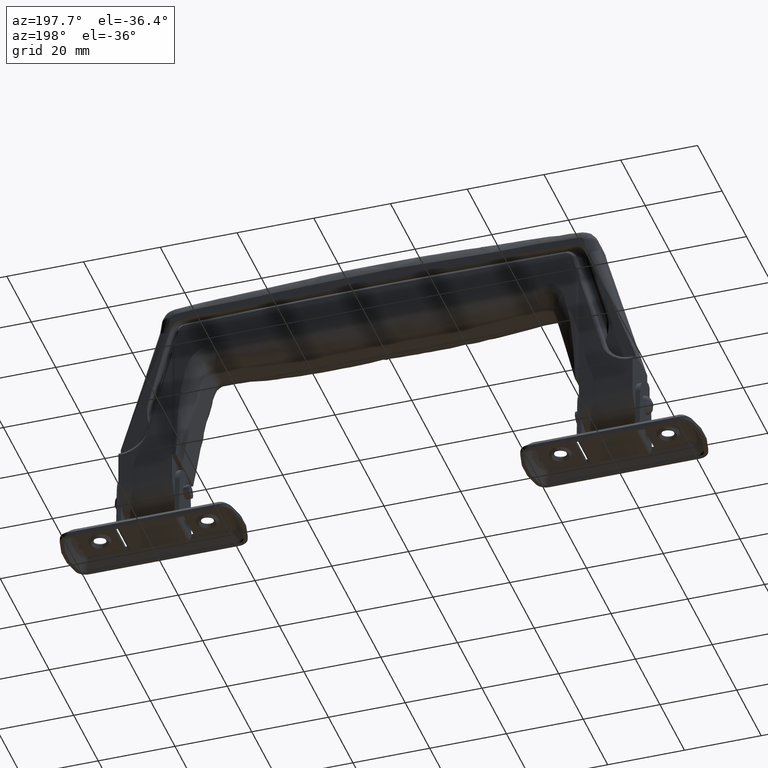
[diagram: clean part render]
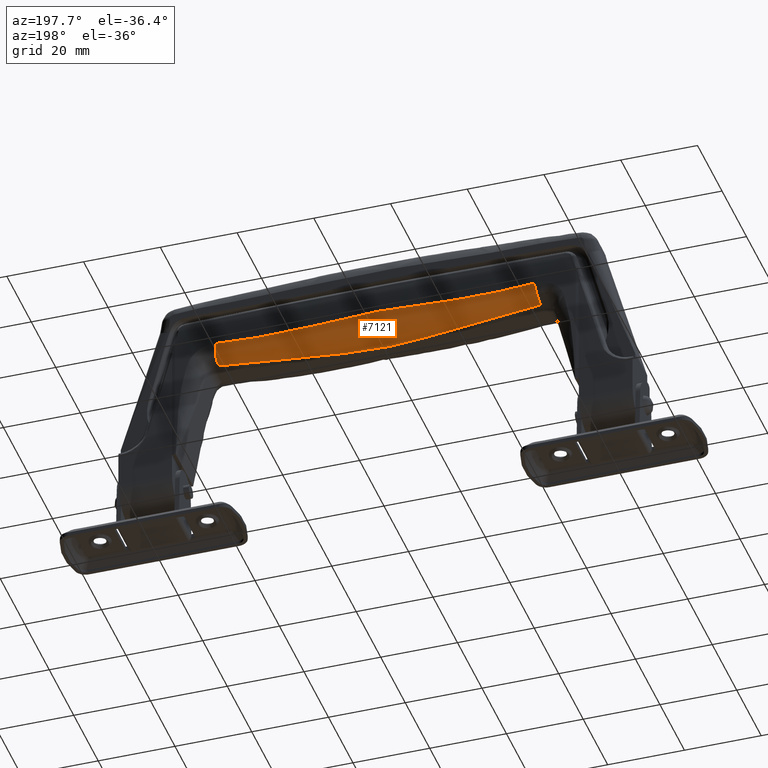
[diagram: same view with one face highlighted and labeled with its STEP entity id]
A machine part, auxiliary view. The second image highlights one B-rep face of the part: STEP entity #7121.
In plain terms, the highlighted face is a freeform B-spline surface patch.
Its self-contained STEP definition (entity closure, byte-faithful):
#6883=CARTESIAN_POINT('',(41.922986112252246,3.422827631886840,47.519837637553898));
#6884=VERTEX_POINT('',#6883);
#6885=CARTESIAN_POINT('',(41.554678747629751,7.421292411651240,51.491039493124703));
#6886=VERTEX_POINT('',#6885);
#6887=CARTESIAN_POINT('',(41.922986112252246,3.422827631886840,47.519837637553898));
#6888=CARTESIAN_POINT('',(42.031847503421808,7.408068273256460,47.532971609171547));
#6889=CARTESIAN_POINT('',(41.554678747629751,7.421292411651240,51.491039493124703));
#6897=(BOUNDED_CURVE()B_SPLINE_CURVE(2,(#6887,#6888,#6889),.UNSPECIFIED.,.F.,.U.)CURVE()GEOMETRIC_REPRESENTATION_ITEM()QUASI_UNIFORM_CURVE()RATIONAL_B_SPLINE_CURVE((1.0,0.708278998175985,1.0))REPRESENTATION_ITEM(''));
#6898=EDGE_CURVE('',#6884,#6886,#6897,.T.);
#6945=CARTESIAN_POINT('',(-42.341021367847198,3.382165207195170,47.570271433181027));
#6946=CARTESIAN_POINT('',(-42.341422192056399,3.396736982086226,47.570320278502408));
#6947=CARTESIAN_POINT('',(-42.451437948158848,7.396307855153182,47.583727040969350));
#6948=CARTESIAN_POINT('',(-41.968244915105764,7.409831556714036,51.555536585545333));
#6949=CARTESIAN_POINT('',(-41.966483565856400,7.409880853702948,51.570014740819587));
#6950=CARTESIAN_POINT('',(-42.201250441347106,3.385994148018000,47.553408791311000));
#6951=CARTESIAN_POINT('',(-42.201650353916868,3.400566108610671,47.553457364307633));
#6952=CARTESIAN_POINT('',(-42.311417108814027,7.400232405021609,47.566789528930812));
#6953=CARTESIAN_POINT('',(-41.829647214198523,7.413672413728989,51.538859920364395));
#6954=CARTESIAN_POINT('',(-41.827891072133049,7.413721405093780,51.553338865560811));
#6955=CARTESIAN_POINT('',(-42.061479537437855,3.389823088221974,47.536546152166494));
#6956=CARTESIAN_POINT('',(-42.061878527089895,3.404395234825210,47.536594451477740));
#6957=CARTESIAN_POINT('',(-42.171393179591391,7.404157041494142,47.549851643127603));
#6958=CARTESIAN_POINT('',(-41.691049524514639,7.417513270432917,51.522183256533886));
#6959=CARTESIAN_POINT('',(-41.689298600821694,7.417561955863540,51.536662992998664));
#6960=CARTESIAN_POINT('',(-34.933193237131427,3.585098222296951,46.676555150899233));
#6961=CARTESIAN_POINT('',(-34.933530203105775,3.599680265101628,46.676587688043242));
#6962=CARTESIAN_POINT('',(-35.026073057277962,7.604428410221186,46.685523546272698));
#6963=CARTESIAN_POINT('',(-34.622582077918693,7.613396554206780,50.671675173227385));
#6964=CARTESIAN_POINT('',(-34.621112127294211,7.613429225888489,50.686197049484775));
#6965=CARTESIAN_POINT('',(-27.934939491513454,3.226033855927586,46.046326713194645));
#6966=CARTESIAN_POINT('',(-27.935248858156235,3.242445935964606,46.046350303081290));
#6967=CARTESIAN_POINT('',(-28.020247516026195,7.751674091233070,46.052831637617281));
#6968=CARTESIAN_POINT('',(-27.650318979483252,7.758171162642511,50.548731860265860));
#6969=CARTESIAN_POINT('',(-27.648971863443325,7.758194822101681,50.565103939479762));
#6970=CARTESIAN_POINT('',(-13.956189946906402,2.409726398458680,45.208273814840375));
#6971=CARTESIAN_POINT('',(-13.956382751747233,2.429799474252184,45.208280334638069));
#6972=CARTESIAN_POINT('',(-14.009385455938887,7.947956040831489,45.210072649120399));
#6973=CARTESIAN_POINT('',(-13.779271936141361,7.949746699893864,50.724558147462567));
#6974=CARTESIAN_POINT('',(-13.778434430392080,7.949753217056618,50.744628299417712));
#6975=CARTESIAN_POINT('',(-6.974296990739857,1.449473059692510,44.999995188620048));
#6976=CARTESIAN_POINT('',(-6.974405740444124,1.473201031135671,44.999995188469555));
#6977=CARTESIAN_POINT('',(-7.004305529115574,7.997001132554747,44.999995147102091));
#6978=CARTESIAN_POINT('',(-6.874304308261578,7.997001090692278,51.523807791744574));
#6979=CARTESIAN_POINT('',(-6.873831229825758,7.997001090539937,51.547548146344553));
#6980=CARTESIAN_POINT('',(6.974779893647503,1.449470887226474,45.000004811546731));
#6981=CARTESIAN_POINT('',(6.974888650881639,1.473198858333757,45.000004811697167));
#6982=CARTESIAN_POINT('',(7.004790509825395,7.996998867406084,45.000004853066073));
#6983=CARTESIAN_POINT('',(6.874780287638738,7.996998909269946,51.523817235463369));
#6984=CARTESIAN_POINT('',(6.874307176446792,7.996998909422289,51.547557589109033));
#6985=CARTESIAN_POINT('',(13.956672891701086,2.409722032195557,45.208293081038185));
#6986=CARTESIAN_POINT('',(13.956865702894907,2.429795107652118,45.208299601367457));
#6987=CARTESIAN_POINT('',(14.009870152865812,7.947951510918466,45.210092061961241));
#6988=CARTESIAN_POINT('',(13.779749025872817,7.949742317688120,50.724577096135206));
#6989=CARTESIAN_POINT('',(13.778911492426154,7.949748835388540,50.744647246658062));
#6990=CARTESIAN_POINT('',(27.935421572494850,3.226025085037054,46.046365302815147));
#6991=CARTESIAN_POINT('',(27.935730944259998,3.242437164540648,46.046388893554450));
#6992=CARTESIAN_POINT('',(28.020731007324912,7.751665058201027,46.052870462175989));
#6993=CARTESIAN_POINT('',(27.650796283165288,7.758162363397230,50.548769939889340));
#6994=CARTESIAN_POINT('',(27.649449144558449,7.758186023708361,50.565142016808281));
#6995=CARTESIAN_POINT('',(34.933674577992726,3.585087230941878,46.676603425565567));
#6996=CARTESIAN_POINT('',(34.934011548457427,3.599669273183662,46.676635963636151));
#6997=CARTESIAN_POINT('',(35.026555632870640,7.604417135746062,46.685572076035768));
#6998=CARTESIAN_POINT('',(34.623059178322436,7.613385533754578,50.671722893134792));
#6999=CARTESIAN_POINT('',(34.621589207704446,7.613418206362765,50.686244766905872));
#7000=CARTESIAN_POINT('',(42.061959645278769,3.389809891986687,47.536604270978650));
#7001=CARTESIAN_POINT('',(42.062358639337361,3.404382037913785,47.536652571382582));
#7002=CARTESIAN_POINT('',(42.171874497161937,7.404143505888197,47.549910062460107));
#7003=CARTESIAN_POINT('',(41.691525403257074,7.417500038654339,51.522240710364393));
#7004=CARTESIAN_POINT('',(41.689774459671803,7.417548725194326,51.536720443864084));
#7005=CARTESIAN_POINT('',(42.201730525070239,3.385980908547967,47.553467103153572));
#7006=CARTESIAN_POINT('',(42.202130442041728,3.400552868462464,47.553515677245436));
#7007=CARTESIAN_POINT('',(42.311898400887742,7.400218825128857,47.566848141963085));
#7008=CARTESIAN_POINT('',(41.830123069042195,7.413659138589444,51.538917565063194));
#7009=CARTESIAN_POINT('',(41.828366907089553,7.413708131066998,51.553396507285896));
#7010=CARTESIAN_POINT('',(42.341501427452783,3.382151924490374,47.570329938054051));
#7011=CARTESIAN_POINT('',(42.341902256058702,3.396723698701222,47.570378784473071));
#7012=CARTESIAN_POINT('',(42.451919214701810,7.396294230975566,47.583785847692972));
#7013=CARTESIAN_POINT('',(41.968720746050813,7.409818238213519,51.555594421112481));
#7014=CARTESIAN_POINT('',(41.966959376919597,7.409867536318595,51.570072573404460));
#7022=(BOUNDED_SURFACE()B_SPLINE_SURFACE(2,3,((#6945,#6950,#6955,#6960,#6965,#6970,#6975,#6980,#6985,#6990,#6995,#7000,#7005,#7010),(#6946,#6951,#6956,#6961,#6966,#6971,#6976,#6981,#6986,#6991,#6996,#7001,#7006,#7011),(#6947,#6952,#6957,#6962,#6967,#6972,#6977,#6982,#6987,#6992,#6997,#7002,#7007,#7012),(#6948,#6953,#6958,#6963,#6968,#6973,#6978,#6983,#6988,#6993,#6998,#7003,#7008,#7013),(#6949,#6954,#6959,#6964,#6969,#6974,#6979,#6984,#6989,#6994,#6999,#7004,#7009,#7014)),.UNSPECIFIED.,.F.,.F.,.U.)B_SPLINE_SURFACE_WITH_KNOTS((3,1,1,3),(4,2,2,2,2,2,4),(0.0,0.053461423501160,10.362109981322060,10.415599432042670),(0.0,0.422512362649586,21.548130967268889,42.673749571888152,63.799368176507450,84.924986781126705,85.347499143938492),.UNSPECIFIED.)GEOMETRIC_REPRESENTATION_ITEM()RATIONAL_B_SPLINE_SURFACE(((1.003025531032494,1.003025612090620,1.003025693148745,1.003029827113231,1.003032876772617,1.003036927371016,1.003037932338807,1.003037932338807,1.003036927277736,1.003032876586725,1.003029826880325,1.003025692869571,1.003025611810539,1.003025530751506),(1.001512765516247,1.001512806045310,1.001512846574372,1.001514913556616,1.001516438386309,1.001518463685508,1.001518966169404,1.001518966169404,1.001518463638868,1.001516438293362,1.001514913440162,1.001512846434786,1.001512805905269,1.001512765375753),(0.708302416282588,0.708294601304302,0.708286786326016,0.707888222424705,0.707594198577511,0.707203672169763,0.707106781186586,0.707106781186586,0.707203681163086,0.707594216499801,0.707888244879698,0.708286813241739,0.708294628307493,0.708302443373247),(1.001513558585498,1.001513599135808,1.001513639686118,1.001515707751979,1.001517233381066,1.001519259742032,1.001519762489355,1.001519762489355,1.001519259695367,1.001517233288071,1.001515707635465,1.001513639546458,1.001513598995694,1.001513558444930),(1.003027117170996,1.003027198271616,1.003027279372237,1.003031415503959,1.003034466762133,1.003038519484063,1.003039524978710,1.003039524978710,1.003038519390734,1.003034466576142,1.003031415270930,1.003027279092916,1.003027197991388,1.003027116889860)))REPRESENTATION_ITEM('')SURFACE());
#7023=CARTESIAN_POINT('',(-41.922505971457340,3.428609498493105,47.519779709588200));
#7024=VERTEX_POINT('',#7023);
#7025=CARTESIAN_POINT('',(-41.554202825031552,7.421305601178259,51.490982227192802));
#7026=VERTEX_POINT('',#7025);
#7027=CARTESIAN_POINT('',(-41.922505971457340,3.428609498493105,47.519779709588192));
#7028=CARTESIAN_POINT('',(-42.030600276639646,7.408102999739661,47.538603834422368));
#7029=CARTESIAN_POINT('',(-41.554202825031552,7.421305601178259,51.490982227192802));
#7037=(BOUNDED_CURVE()B_SPLINE_CURVE(2,(#7027,#7028,#7029),.UNSPECIFIED.,.F.,.U.)B_SPLINE_CURVE_WITH_KNOTS((3,3),(0.0,0.998979220987266),.UNSPECIFIED.)CURVE()GEOMETRIC_REPRESENTATION_ITEM()RATIONAL_B_SPLINE_CURVE((0.999405042533425,0.708576754051278,1.0))REPRESENTATION_ITEM(''));
#7038=EDGE_CURVE('',#7024,#7026,#7037,.T.);
#7039=ORIENTED_EDGE('',*,*,#7038,.T.);
#7040=CARTESIAN_POINT('',(41.554678747629751,7.421292411651240,51.491039493124703));
#7041=CARTESIAN_POINT('',(41.089920193332183,7.434047676379141,51.437016296585547));
#7042=CARTESIAN_POINT('',(40.150705425610717,7.459824357384624,51.327842654658284));
#7043=CARTESIAN_POINT('',(38.724575480703130,7.497267260594473,51.186495987850194));
#7044=CARTESIAN_POINT('',(37.267484889212867,7.534219085854554,51.059223242089693));
#7045=CARTESIAN_POINT('',(35.779207858291798,7.570472299440874,50.947867913329610));
#7046=CARTESIAN_POINT('',(34.259805049064887,7.605966556472379,50.851906605791733));
#7047=CARTESIAN_POINT('',(32.709257243127993,7.640598364204037,50.771537867194908));
#7048=CARTESIAN_POINT('',(30.035925125816121,7.697515751552243,50.661610537507471));
#7049=CARTESIAN_POINT('',(26.034465751327190,7.774075246733962,50.584882149279530));
#7050=CARTESIAN_POINT('',(22.028317185546229,7.836796585451508,50.591701423773230));
#7051=CARTESIAN_POINT('',(19.075757033515160,7.876007922275928,50.647203058309550));
#7052=CARTESIAN_POINT('',(17.343630611019940,7.897090092844721,50.707089204321207));
#7053=CARTESIAN_POINT('',(15.462995699350429,7.917721367485576,50.791627427453257));
#7054=CARTESIAN_POINT('',(13.111740471957170,7.940450988366018,50.924132990940002));
#7055=CARTESIAN_POINT('',(10.403595031904951,7.961950374993065,51.087925536474060));
#7056=CARTESIAN_POINT('',(7.631268280273360,7.978335708493446,51.252660689280340));
#7057=CARTESIAN_POINT('',(4.187688460360040,7.992751175799176,51.429536429750669));
#7058=CARTESIAN_POINT('',(0.000237962633854,7.999964786387444,51.549177740246932));
#7059=CARTESIAN_POINT('',(-4.186956540146042,7.992752945070807,51.429540051855867));
#7060=CARTESIAN_POINT('',(-7.630536699815760,7.978339451561690,51.252662083331749));
#7061=CARTESIAN_POINT('',(-10.402714048760570,7.961956583533592,51.087976528869369));
#7062=CARTESIAN_POINT('',(-13.111111661781999,7.940456474974519,50.923980210182357));
#7063=CARTESIAN_POINT('',(-15.756269520244251,7.914886907462761,50.775443195281632));
#7064=CARTESIAN_POINT('',(-18.168381145413189,7.887717206963830,50.670825396634427));
#7065=CARTESIAN_POINT('',(-20.663796899796111,7.855285086545871,50.612700287341852));
#7066=CARTESIAN_POINT('',(-22.970312949882882,7.821667795776087,50.596689045459669));
#7067=CARTESIAN_POINT('',(-25.156739551622650,7.786538313443124,50.594558654166278));
#7068=CARTESIAN_POINT('',(-27.241091105412849,7.750080087857992,50.612610137205600));
#7069=CARTESIAN_POINT('',(-29.223361611132422,7.712720034700978,50.649171066557443));
#7070=CARTESIAN_POINT('',(-31.426853274230840,7.668347885775612,50.714429405313830));
#7071=CARTESIAN_POINT('',(-33.853981595895831,7.615746232524052,50.823052658214252));
#7072=CARTESIAN_POINT('',(-36.506305185607403,7.553399378838416,50.994690066818997));
#7073=CARTESIAN_POINT('',(-39.064090637881407,7.489133244080036,51.209285930644292));
#7074=CARTESIAN_POINT('',(-40.734106550709512,7.443644031361043,51.398208060437469));
#7075=CARTESIAN_POINT('',(-41.554202825031552,7.421305601178259,51.490982227192802));
#7076=B_SPLINE_CURVE_WITH_KNOTS('',3,(#7040,#7041,#7042,#7043,#7044,#7045,#7046,#7047,#7048,#7049,#7050,#7051,#7052,#7053,#7054,#7055,#7056,#7057,#7058,#7059,#7060,#7061,#7062,#7063,#7064,#7065,#7066,#7067,#7068,#7069,#7070,#7071,#7072,#7073,#7074,#7075),.UNSPECIFIED.,.F.,.U.,(4,1,1,1,1,1,1,1,1,1,1,1,1,1,1,1,1,1,1,1,1,1,1,1,1,1,1,1,1,1,1,1,1,4),(0.0,0.016871193265619,0.034094421108979,0.051672565732831,0.069608338239717,0.087904290752321,0.106562827597018,0.125586215621713,0.184366694436632,0.250831566810172,0.269994510449988,0.290818403783771,0.313306454519160,0.337853986691786,0.375707509412963,0.411104513368805,0.437959850313504,0.499999734732330,0.562039619097655,0.588885736684458,0.624291960165088,0.662140077161122,0.686693014699425,0.719791726797836,0.749167389296251,0.776667493108732,0.802940214768317,0.827987520521682,0.851811680030294,0.874415331417760,0.907462587422632,0.939400213280728,0.970241206127654,1.0),.UNSPECIFIED.);
#7077=EDGE_CURVE('',#6886,#7026,#7076,.T.);
#7078=ORIENTED_EDGE('',*,*,#7077,.F.);
#7079=ORIENTED_EDGE('',*,*,#6898,.F.);
#7080=CARTESIAN_POINT('',(-41.922505971457340,3.428609498493105,47.519779709588200));
#7081=CARTESIAN_POINT('',(-41.387784306123088,3.441291358130296,47.455991692177641));
#7082=CARTESIAN_POINT('',(-40.299595541658761,3.467098993171953,47.326179748351393));
#7083=CARTESIAN_POINT('',(-38.637588862275202,3.482014902473641,47.137911780569958));
#7084=CARTESIAN_POINT('',(-36.918296463248062,3.480696708186453,46.951027288092781));
#7085=CARTESIAN_POINT('',(-35.141573246284302,3.461217072185054,46.767088691032242));
#7086=CARTESIAN_POINT('',(-33.307416126983917,3.424038392043018,46.586764102441471));
#7087=CARTESIAN_POINT('',(-31.084605387603450,3.359759369470192,46.380237789170572));
#7088=CARTESIAN_POINT('',(-28.308025343527540,3.248790345975289,46.141663620229522));
#7089=CARTESIAN_POINT('',(-24.812178149337900,3.075586718342046,45.873762153604723));
#7090=CARTESIAN_POINT('',(-21.780859596236532,2.912362540175916,45.674386794015383));
#7091=CARTESIAN_POINT('',(-19.332981653752910,2.758822524876194,45.533064589820029));
#7092=CARTESIAN_POINT('',(-17.586125401627360,2.629754782592562,45.440469902456897));
#7093=CARTESIAN_POINT('',(-15.481877911449670,2.458363171236774,45.340078979362303));
#7094=CARTESIAN_POINT('',(-13.086686062053889,2.255247277380643,45.241479534866002));
#7095=CARTESIAN_POINT('',(-10.557213597751950,2.033159002645956,45.156316643068493));
#7096=CARTESIAN_POINT('',(-8.159444739793775,1.834879159015489,45.092634863047373));
#7097=CARTESIAN_POINT('',(-5.935980410513772,1.687093695060259,45.048127854646381));
#7098=CARTESIAN_POINT('',(-3.842102878631118,1.580143399003523,45.019135406623967));
#7099=CARTESIAN_POINT('',(-1.877790702728081,1.515710264480131,45.003326924460438));
#7100=CARTESIAN_POINT('',(0.944292737726799,1.479978361856686,44.995929711827287));
#7101=CARTESIAN_POINT('',(5.050399617333990,1.617206887846511,45.023333180318467));
#7102=CARTESIAN_POINT('',(9.410035026869977,1.933272953648132,45.117688607371221));
#7103=CARTESIAN_POINT('',(13.087635233407580,2.244763346148891,45.241515109318698));
#7104=CARTESIAN_POINT('',(15.705907113923450,2.475827893869588,45.349303970392690));
#7105=CARTESIAN_POINT('',(18.324841884893392,2.692920078834570,45.476766332273513));
#7106=CARTESIAN_POINT('',(21.102310469925030,2.869245075250623,45.632825961216142));
#7107=CARTESIAN_POINT('',(23.931918314683980,3.024205579267826,45.815029597527129));
#7108=CARTESIAN_POINT('',(26.709291078007830,3.167790313250722,46.017311087216022));
#7109=CARTESIAN_POINT('',(29.175835234812940,3.280265919077005,46.215587842701993));
#7110=CARTESIAN_POINT('',(31.655303258111640,3.374725031993628,46.431471857603441));
#7111=CARTESIAN_POINT('',(34.208367028829642,3.443216691396323,46.672021204195786));
#7112=CARTESIAN_POINT('',(36.895027512333137,3.478425894747851,46.946970815875687));
#7113=CARTESIAN_POINT('',(39.452925453787067,3.477182942194228,47.226900513726036));
#7114=CARTESIAN_POINT('',(41.113674315711833,3.440637070568284,47.423857213289409));
#7115=CARTESIAN_POINT('',(41.922986112252246,3.422827631886840,47.519837637553898));
#7116=B_SPLINE_CURVE_WITH_KNOTS('',3,(#7080,#7081,#7082,#7083,#7084,#7085,#7086,#7087,#7088,#7089,#7090,#7091,#7092,#7093,#7094,#7095,#7096,#7097,#7098,#7099,#7100,#7101,#7102,#7103,#7104,#7105,#7106,#7107,#7108,#7109,#7110,#7111,#7112,#7113,#7114,#7115),.UNSPECIFIED.,.F.,.U.,(4,1,1,1,1,1,1,1,1,1,1,1,1,1,1,1,1,1,1,1,1,1,1,1,1,1,1,1,1,1,1,1,1,4),(0.000001618165696,0.019199712414986,0.039070821809729,0.059615715530599,0.080836553505876,0.102735295637516,0.125313725276490,0.160431804364382,0.202134034022778,0.250422998179779,0.268855407832669,0.289693025490374,0.312937312572341,0.344184730894348,0.375436248759387,0.403486209608122,0.429961594377118,0.454868395196693,0.478213812299224,0.500006593828082,0.555447397240930,0.624563902685211,0.655810231796547,0.687062871905686,0.718322612958865,0.749577424462505,0.786404228693899,0.819530769406509,0.848957955399935,0.874687090998195,0.908297841770855,0.940382429358710,0.970947321231244,1.0),.UNSPECIFIED.);
#7117=EDGE_CURVE('',#7024,#6884,#7116,.T.);
#7118=ORIENTED_EDGE('',*,*,#7117,.F.);
#7119=EDGE_LOOP('',(#7039,#7078,#7079,#7118));
#7120=FACE_OUTER_BOUND('',#7119,.T.);
#7121=ADVANCED_FACE('',(#7120),#7022,.T.);